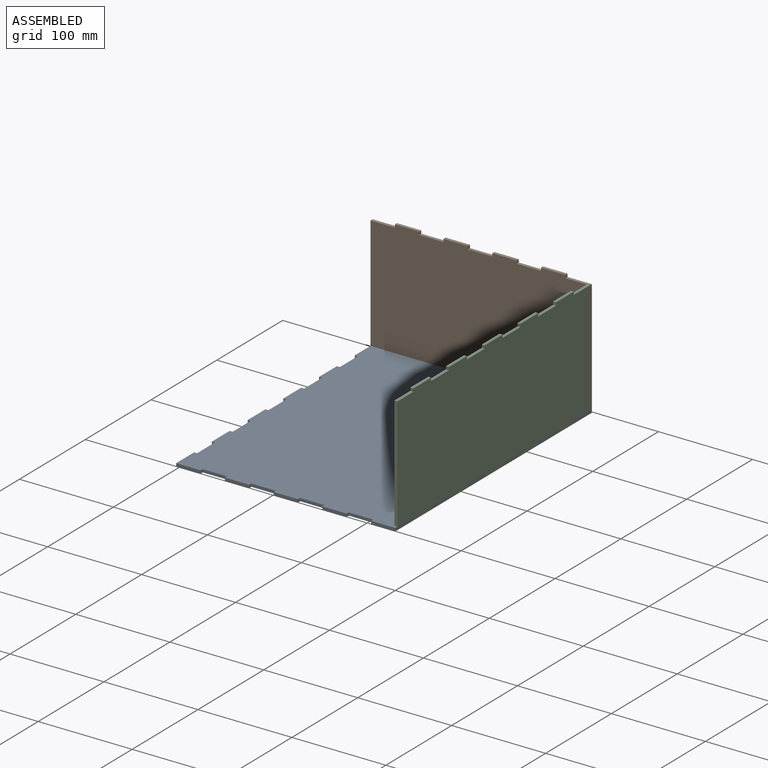
[diagram: assembled view]
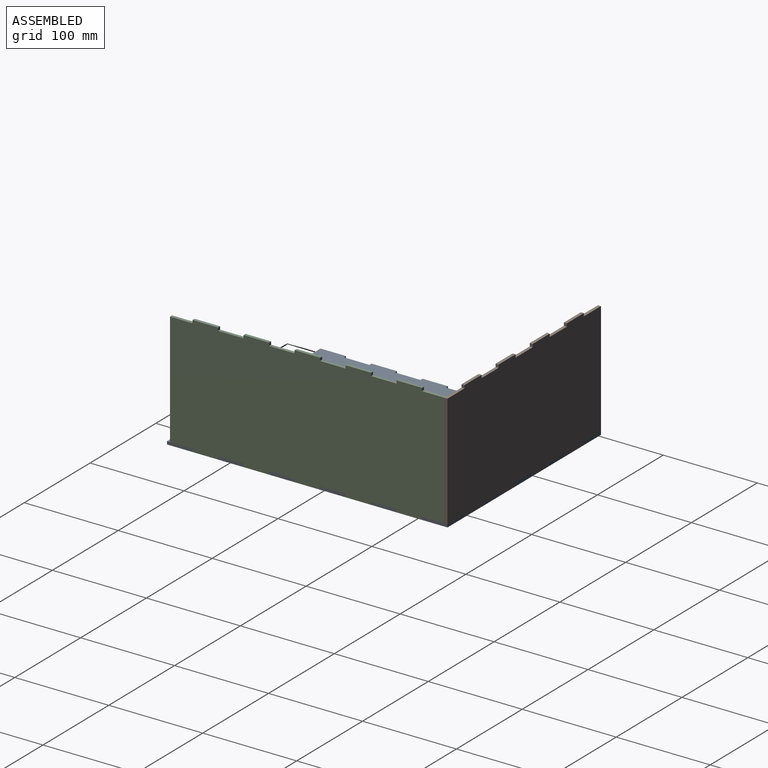
[diagram: assembled view, second angle]
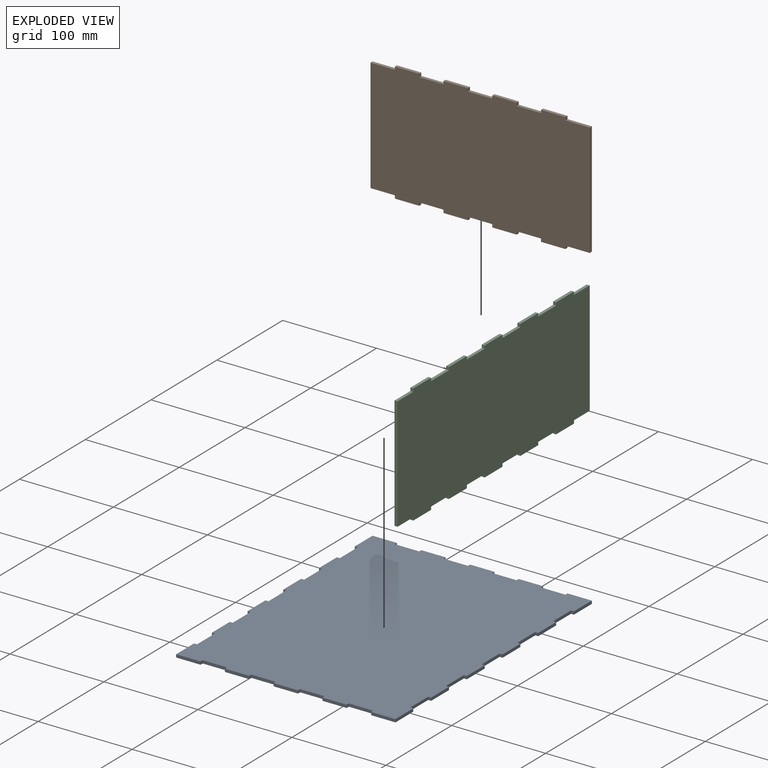
[diagram: exploded view]
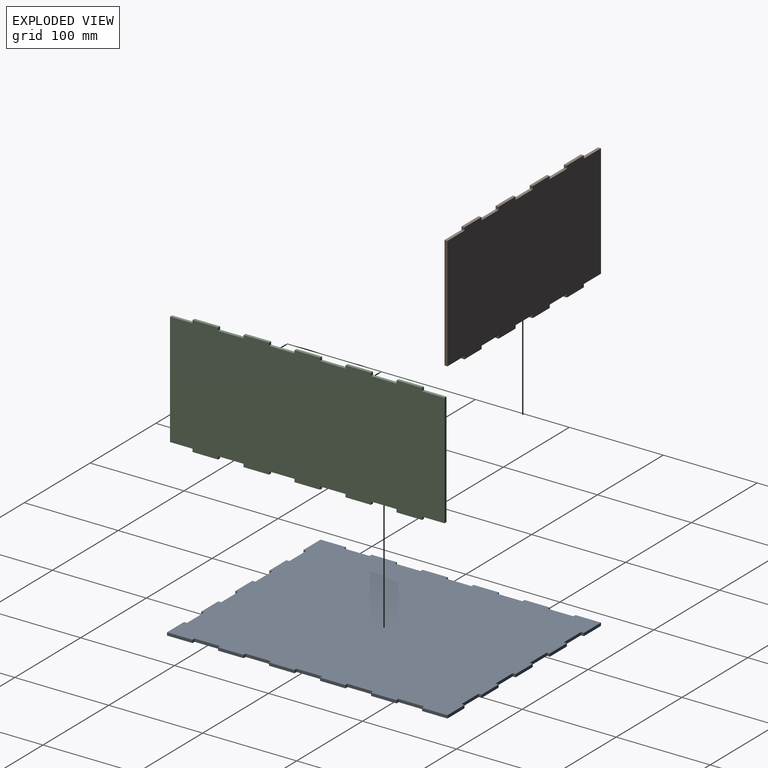
[diagram: exploded view, second angle]
ASSEMBLY  parts=3 mates=2
PART A: 78 faces, bbox 233.4x298.5x3.2 mm
  f0: plane 3.18x3.18mm, normal (1,0,0), area 10.1mm2, adj f1,f75,f76,f77
  f1: plane 25.93x3.18mm, normal (0,-1,0), area 82.3mm2, adj f0,f2,f76,f77
  f2: plane 3.18x3.18mm, normal (-1,0,0), area 10.1mm2, adj f1,f3,f76,f77
  f3: plane 25.93x3.18mm, normal (0,-1,0), area 82.3mm2, adj f2,f4,f76,f77
  f4: plane 3.18x3.18mm, normal (1,0,0), area 10.1mm2, adj f3,f5,f76,f77
  f5: plane 25.93x3.18mm, normal (0,-1,0), area 82.3mm2, adj f4,f6,f76,f77
  f6: plane 3.18x3.18mm, normal (-1,0,0), area 10.1mm2, adj f5,f7,f76,f77
  f7: plane 25.93x3.18mm, normal (0,-1,0), area 82.3mm2, adj f6,f8,f76,f77
  f8: plane 27.13x3.18mm, normal (1,0,0), area 86.1mm2, adj f7,f9,f76,f77
  f9: plane 3.18x3.18mm, normal (0,1,0), area 10.1mm2, adj f8,f10,f76,f77
  f10: plane 27.13x3.18mm, normal (1,0,0), area 86.1mm2, adj f9,f11,f76,f77
  f11: plane 3.18x3.18mm, normal (0,-1,0), area 10.1mm2, adj f10,f12,f76,f77
  f12: plane 27.13x3.18mm, normal (1,0,0), area 86.1mm2, adj f11,f13,f76,f77
  f13: plane 3.18x3.18mm, normal (0,1,0), area 10.1mm2, adj f12,f14,f76,f77
  f14: plane 27.13x3.18mm, normal (1,0,0), area 86.1mm2, adj f13,f15,f76,f77
  f15: plane 3.18x3.18mm, normal (0,-1,0), area 10.1mm2, adj f14,f16,f76,f77
  f16: plane 27.13x3.18mm, normal (1,0,0), area 86.1mm2, adj f15,f17,f76,f77
  f17: plane 3.18x3.18mm, normal (0,1,0), area 10.1mm2, adj f16,f18,f76,f77
  f18: plane 27.13x3.18mm, normal (1,0,0), area 86.1mm2, adj f17,f19,f76,f77
  f19: plane 3.18x3.18mm, normal (0,-1,0), area 10.1mm2, adj f18,f20,f76,f77
  f20: plane 27.13x3.18mm, normal (1,0,0), area 86.1mm2, adj f19,f21,f76,f77
  f21: plane 3.18x3.18mm, normal (0,1,0), area 10.1mm2, adj f20,f22,f76,f77
  f22: plane 27.13x3.18mm, normal (1,0,0), area 86.1mm2, adj f21,f23,f76,f77
  f23: plane 3.18x3.18mm, normal (0,-1,0), area 10.1mm2, adj f22,f24,f76,f77
  f24: plane 27.13x3.18mm, normal (1,0,0), area 86.1mm2, adj f23,f25,f76,f77
  f25: plane 3.18x3.18mm, normal (0,1,0), area 10.1mm2, adj f24,f26,f76,f77
  f26: plane 27.13x3.18mm, normal (1,0,0), area 86.1mm2, adj f25,f27,f76,f77
  f27: plane 3.18x3.18mm, normal (0,-1,0), area 10.1mm2, adj f26,f28,f76,f77
  f28: plane 27.13x3.18mm, normal (1,0,0), area 86.1mm2, adj f27,f29,f76,f77
  f29: plane 25.93x3.18mm, normal (0,1,0), area 82.3mm2, adj f28,f30,f76,f77
  f30: plane 3.18x3.18mm, normal (-1,0,0), area 10.1mm2, adj f29,f31,f76,f77
  f31: plane 25.93x3.18mm, normal (0,1,0), area 82.3mm2, adj f30,f32,f76,f77
  f32: plane 3.18x3.18mm, normal (1,0,0), area 10.1mm2, adj f31,f33,f76,f77
  f33: plane 25.93x3.18mm, normal (0,1,0), area 82.3mm2, adj f32,f34,f76,f77
  f34: plane 3.18x3.18mm, normal (-1,0,0), area 10.1mm2, adj f33,f35,f76,f77
  f35: plane 25.93x3.18mm, normal (0,1,0), area 82.3mm2, adj f34,f36,f76,f77
  f36: plane 3.18x3.18mm, normal (1,0,0), area 10.1mm2, adj f35,f37,f76,f77
  f37: plane 25.93x3.18mm, normal (0,1,0), area 82.3mm2, adj f36,f38,f76,f77
  f38: plane 3.18x3.18mm, normal (-1,0,0), area 10.1mm2, adj f37,f39,f76,f77
  f39: plane 25.93x3.18mm, normal (0,1,0), area 82.3mm2, adj f38,f40,f76,f77
  f40: plane 3.18x3.18mm, normal (1,0,0), area 10.1mm2, adj f39,f41,f76,f77
  f41: plane 25.93x3.18mm, normal (0,1,0), area 82.3mm2, adj f40,f42,f76,f77
  f42: plane 3.18x3.18mm, normal (-1,0,0), area 10.1mm2, adj f41,f43,f76,f77
  f43: plane 25.93x3.18mm, normal (0,1,0), area 82.3mm2, adj f42,f44,f76,f77
  f44: plane 3.18x3.18mm, normal (1,0,0), area 10.1mm2, adj f43,f45,f76,f77
  f45: plane 25.93x3.18mm, normal (0,1,0), area 82.3mm2, adj f44,f46,f76,f77
  f46: plane 27.13x3.18mm, normal (-1,0,0), area 86.1mm2, adj f45,f47,f76,f77
  f47: plane 3.18x3.18mm, normal (0,-1,0), area 10.1mm2, adj f46,f48,f76,f77
  f48: plane 27.13x3.18mm, normal (-1,0,0), area 86.1mm2, adj f47,f49,f76,f77
  f49: plane 3.18x3.18mm, normal (0,1,0), area 10.1mm2, adj f48,f50,f76,f77
  f50: plane 27.13x3.18mm, normal (-1,0,0), area 86.1mm2, adj f49,f51,f76,f77
  f51: plane 3.18x3.18mm, normal (0,-1,0), area 10.1mm2, adj f50,f52,f76,f77
  f52: plane 27.13x3.18mm, normal (-1,0,0), area 86.1mm2, adj f51,f53,f76,f77
  f53: plane 3.18x3.18mm, normal (0,1,0), area 10.1mm2, adj f52,f54,f76,f77
  f54: plane 27.13x3.18mm, normal (-1,0,0), area 86.1mm2, adj f53,f55,f76,f77
  f55: plane 3.18x3.18mm, normal (0,-1,0), area 10.1mm2, adj f54,f56,f76,f77
  f56: plane 27.13x3.18mm, normal (-1,0,0), area 86.1mm2, adj f55,f57,f76,f77
  f57: plane 3.18x3.18mm, normal (0,1,0), area 10.1mm2, adj f56,f58,f76,f77
  f58: plane 27.13x3.18mm, normal (-1,0,0), area 86.1mm2, adj f57,f59,f76,f77
  f59: plane 3.18x3.18mm, normal (0,-1,0), area 10.1mm2, adj f58,f60,f76,f77
  f60: plane 27.13x3.18mm, normal (-1,0,0), area 86.1mm2, adj f59,f61,f76,f77
  f61: plane 3.18x3.18mm, normal (0,1,0), area 10.1mm2, adj f60,f62,f76,f77
  f62: plane 27.13x3.18mm, normal (-1,0,0), area 86.1mm2, adj f61,f63,f76,f77
  f63: plane 3.18x3.18mm, normal (0,-1,0), area 10.1mm2, adj f62,f64,f76,f77
  f64: plane 27.13x3.18mm, normal (-1,0,0), area 86.1mm2, adj f63,f65,f76,f77
  f65: plane 3.18x3.18mm, normal (0,1,0), area 10.1mm2, adj f64,f66,f76,f77
  f66: plane 27.13x3.18mm, normal (-1,0,0), area 86.1mm2, adj f65,f67,f76,f77
  f67: plane 25.93x3.18mm, normal (0,-1,0), area 82.3mm2, adj f66,f68,f76,f77
  f68: plane 3.18x3.18mm, normal (1,0,0), area 10.1mm2, adj f67,f69,f76,f77
  f69: plane 25.93x3.18mm, normal (0,-1,0), area 82.3mm2, adj f68,f70,f76,f77
  f70: plane 3.18x3.18mm, normal (-1,0,0), area 10.1mm2, adj f69,f71,f76,f77
  f71: plane 25.93x3.18mm, normal (0,-1,0), area 82.3mm2, adj f70,f72,f76,f77
  f72: plane 3.18x3.18mm, normal (1,0,0), area 10.1mm2, adj f71,f73,f76,f77
  f73: plane 25.93x3.18mm, normal (0,-1,0), area 82.3mm2, adj f72,f74,f76,f77
  f74: plane 3.18x3.18mm, normal (-1,0,0), area 10.1mm2, adj f73,f75,f76,f77
  f75: plane 25.93x3.18mm, normal (0,-1,0), area 82.3mm2, adj f0,f74,f76,f77
  f76: plane 298.45x233.36mm, normal (0,0,1), area 68127mm2, adj f0,f1,f2,f3,f4,f5,f6,f7
  f77: plane 298.45x233.36mm, normal (0,0,-1), area 68127mm2, adj f0,f1,f2,f3,f4,f5,f6,f7
PART B: 38 faces, bbox 127x233.4x3.2 mm
  f0: plane 120.65x3.18mm, normal (0,1,0), area 383.1mm2, adj f1,f35,f36,f37
  f1: plane 25.93x3.18mm, normal (-1,0,0), area 82.3mm2, adj f0,f2,f36,f37
  f2: plane 3.18x3.18mm, normal (0,1,0), area 10.1mm2, adj f1,f3,f36,f37
  f3: plane 25.93x3.18mm, normal (-1,0,0), area 82.3mm2, adj f2,f4,f36,f37
  f4: plane 3.18x3.18mm, normal (0,-1,0), area 10.1mm2, adj f3,f5,f36,f37
  f5: plane 25.93x3.18mm, normal (-1,0,0), area 82.3mm2, adj f4,f6,f36,f37
  f6: plane 3.18x3.18mm, normal (0,1,0), area 10.1mm2, adj f5,f7,f36,f37
  f7: plane 25.93x3.18mm, normal (-1,0,0), area 82.3mm2, adj f6,f8,f36,f37
  f8: plane 3.18x3.18mm, normal (0,-1,0), area 10.1mm2, adj f7,f9,f36,f37
  f9: plane 25.93x3.18mm, normal (-1,0,0), area 82.3mm2, adj f8,f10,f36,f37
  f10: plane 3.18x3.18mm, normal (0,1,0), area 10.1mm2, adj f9,f11,f36,f37
  f11: plane 25.93x3.18mm, normal (-1,0,0), area 82.3mm2, adj f10,f12,f36,f37
  f12: plane 3.18x3.18mm, normal (0,-1,0), area 10.1mm2, adj f11,f13,f36,f37
  f13: plane 25.93x3.18mm, normal (-1,0,0), area 82.3mm2, adj f12,f14,f36,f37
  f14: plane 3.18x3.18mm, normal (0,1,0), area 10.1mm2, adj f13,f15,f36,f37
  f15: plane 25.93x3.18mm, normal (-1,0,0), area 82.3mm2, adj f14,f16,f36,f37
  f16: plane 3.18x3.18mm, normal (0,-1,0), area 10.1mm2, adj f15,f17,f36,f37
  f17: plane 25.93x3.18mm, normal (-1,0,0), area 82.3mm2, adj f16,f18,f36,f37
  f18: plane 120.65x3.18mm, normal (0,-1,0), area 383.1mm2, adj f17,f19,f36,f37
  f19: plane 25.93x3.18mm, normal (1,0,0), area 82.3mm2, adj f18,f20,f36,f37
  f20: plane 3.18x3.18mm, normal (0,-1,0), area 10.1mm2, adj f19,f21,f36,f37
  f21: plane 25.93x3.18mm, normal (1,0,0), area 82.3mm2, adj f20,f22,f36,f37
  f22: plane 3.18x3.18mm, normal (0,1,0), area 10.1mm2, adj f21,f23,f36,f37
  f23: plane 25.93x3.18mm, normal (1,0,0), area 82.3mm2, adj f22,f24,f36,f37
  f24: plane 3.18x3.18mm, normal (0,-1,0), area 10.1mm2, adj f23,f25,f36,f37
  f25: plane 25.93x3.18mm, normal (1,0,0), area 82.3mm2, adj f24,f26,f36,f37
  f26: plane 3.18x3.18mm, normal (0,1,0), area 10.1mm2, adj f25,f27,f36,f37
  f27: plane 25.93x3.18mm, normal (1,0,0), area 82.3mm2, adj f26,f28,f36,f37
  f28: plane 3.18x3.18mm, normal (0,-1,0), area 10.1mm2, adj f27,f29,f36,f37
  f29: plane 25.93x3.18mm, normal (1,0,0), area 82.3mm2, adj f28,f30,f36,f37
  f30: plane 3.18x3.18mm, normal (0,1,0), area 10.1mm2, adj f29,f31,f36,f37
  f31: plane 25.93x3.18mm, normal (1,0,0), area 82.3mm2, adj f30,f32,f36,f37
  f32: plane 3.18x3.18mm, normal (0,-1,0), area 10.1mm2, adj f31,f33,f36,f37
  f33: plane 25.93x3.18mm, normal (1,0,0), area 82.3mm2, adj f32,f34,f36,f37
  f34: plane 3.18x3.18mm, normal (0,1,0), area 10.1mm2, adj f33,f35,f36,f37
  f35: plane 25.93x3.18mm, normal (1,0,0), area 82.3mm2, adj f0,f34,f36,f37
  f36: plane 233.36x127mm, normal (0,0,1), area 28813.8mm2, adj f0,f1,f2,f3,f4,f5,f6,f7
  f37: plane 233.36x127mm, normal (0,0,-1), area 28813.8mm2, adj f0,f1,f2,f3,f4,f5,f6,f7
PART C: 46 faces, bbox 292.1x127x3.2 mm
  f0: plane 23.96x3.18mm, normal (0,-1,0), area 76.1mm2, adj f1,f43,f44,f45
  f1: plane 3.18x3.18mm, normal (-1,0,0), area 10.1mm2, adj f0,f2,f44,f45
  f2: plane 27.13x3.18mm, normal (0,-1,0), area 86.1mm2, adj f1,f3,f44,f45
  f3: plane 3.18x3.18mm, normal (1,0,0), area 10.1mm2, adj f2,f4,f44,f45
  f4: plane 27.13x3.18mm, normal (0,-1,0), area 86.1mm2, adj f3,f5,f44,f45
  f5: plane 3.18x3.18mm, normal (-1,0,0), area 10.1mm2, adj f4,f6,f44,f45
  f6: plane 27.13x3.18mm, normal (0,-1,0), area 86.1mm2, adj f5,f7,f44,f45
  f7: plane 3.18x3.18mm, normal (1,0,0), area 10.1mm2, adj f6,f8,f44,f45
  f8: plane 27.13x3.18mm, normal (0,-1,0), area 86.1mm2, adj f7,f9,f44,f45
  f9: plane 3.18x3.18mm, normal (-1,0,0), area 10.1mm2, adj f8,f10,f44,f45
  f10: plane 27.13x3.18mm, normal (0,-1,0), area 86.1mm2, adj f9,f11,f44,f45
  f11: plane 3.18x3.18mm, normal (1,0,0), area 10.1mm2, adj f10,f12,f44,f45
  f12: plane 27.13x3.18mm, normal (0,-1,0), area 86.1mm2, adj f11,f13,f44,f45
  f13: plane 3.18x3.18mm, normal (-1,0,0), area 10.1mm2, adj f12,f14,f44,f45
  f14: plane 27.13x3.18mm, normal (0,-1,0), area 86.1mm2, adj f13,f15,f44,f45
  f15: plane 3.18x3.18mm, normal (1,0,0), area 10.1mm2, adj f14,f16,f44,f45
  f16: plane 27.13x3.18mm, normal (0,-1,0), area 86.1mm2, adj f15,f17,f44,f45
  f17: plane 3.18x3.18mm, normal (-1,0,0), area 10.1mm2, adj f16,f18,f44,f45
  f18: plane 27.13x3.18mm, normal (0,-1,0), area 86.1mm2, adj f17,f19,f44,f45
  f19: plane 3.18x3.18mm, normal (1,0,0), area 10.1mm2, adj f18,f20,f44,f45
  f20: plane 23.96x3.18mm, normal (0,-1,0), area 76.1mm2, adj f19,f21,f44,f45
  f21: plane 120.65x3.18mm, normal (1,0,0), area 383.1mm2, adj f20,f22,f44,f45
  f22: plane 23.96x3.18mm, normal (0,1,0), area 76.1mm2, adj f21,f23,f44,f45
  f23: plane 3.18x3.18mm, normal (1,0,0), area 10.1mm2, adj f22,f24,f44,f45
  f24: plane 27.13x3.18mm, normal (0,1,0), area 86.1mm2, adj f23,f25,f44,f45
  f25: plane 3.18x3.18mm, normal (-1,0,0), area 10.1mm2, adj f24,f26,f44,f45
  f26: plane 27.13x3.18mm, normal (0,1,0), area 86.1mm2, adj f25,f27,f44,f45
  f27: plane 3.18x3.18mm, normal (1,0,0), area 10.1mm2, adj f26,f28,f44,f45
  f28: plane 27.13x3.18mm, normal (0,1,0), area 86.1mm2, adj f27,f29,f44,f45
  f29: plane 3.18x3.18mm, normal (-1,0,0), area 10.1mm2, adj f28,f30,f44,f45
  f30: plane 27.13x3.18mm, normal (0,1,0), area 86.1mm2, adj f29,f31,f44,f45
  f31: plane 3.18x3.18mm, normal (1,0,0), area 10.1mm2, adj f30,f32,f44,f45
  f32: plane 27.13x3.18mm, normal (0,1,0), area 86.1mm2, adj f31,f33,f44,f45
  f33: plane 3.18x3.18mm, normal (-1,0,0), area 10.1mm2, adj f32,f34,f44,f45
  f34: plane 27.13x3.18mm, normal (0,1,0), area 86.1mm2, adj f33,f35,f44,f45
  f35: plane 3.18x3.18mm, normal (1,0,0), area 10.1mm2, adj f34,f36,f44,f45
  f36: plane 27.13x3.18mm, normal (0,1,0), area 86.1mm2, adj f35,f37,f44,f45
  f37: plane 3.18x3.18mm, normal (-1,0,0), area 10.1mm2, adj f36,f38,f44,f45
  f38: plane 27.13x3.18mm, normal (0,1,0), area 86.1mm2, adj f37,f39,f44,f45
  f39: plane 3.18x3.18mm, normal (1,0,0), area 10.1mm2, adj f38,f40,f44,f45
  f40: plane 27.13x3.18mm, normal (0,1,0), area 86.1mm2, adj f39,f41,f44,f45
  f41: plane 3.18x3.18mm, normal (-1,0,0), area 10.1mm2, adj f40,f42,f44,f45
  f42: plane 23.96x3.18mm, normal (0,1,0), area 76.1mm2, adj f41,f43,f44,f45
  f43: plane 120.65x3.18mm, normal (-1,0,0), area 383.1mm2, adj f0,f42,f44,f45
  f44: plane 292.1x127mm, normal (0,0,1), area 36103.3mm2, adj f0,f1,f2,f3,f4,f5,f6,f7
  f45: plane 292.1x127mm, normal (0,0,-1), area 36103.3mm2, adj f0,f1,f2,f3,f4,f5,f6,f7
PLACE A t=(-157.63,-82.48,4.62)mm
PLACE B rot(axis=(0.58,0.58,-0.58),120deg) t=(-182.49,65,56.73)mm
PLACE C rot(axis=(0.58,0.58,0.58),120deg) t=(-39.54,-92.29,89.77)mm
MATE fastened C.f8 <-> A.f76  axis (0,0,-1) through (-36.37,-111.36,7.8)mm
MATE fastened B.f27 <-> A.f76  axis (0,0,-1) through (-153.05,65,7.8)mm
